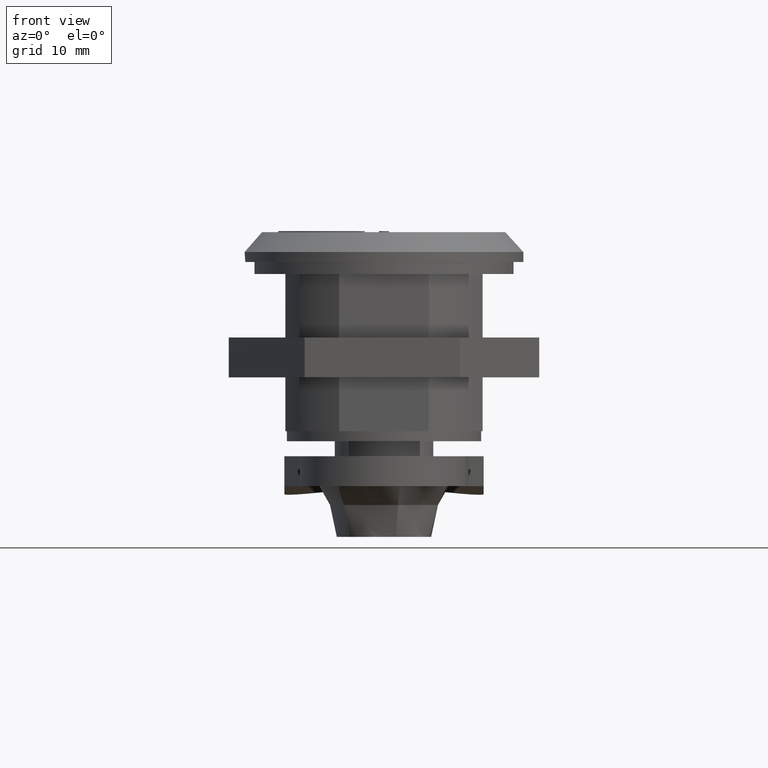
[diagram: clean part render]
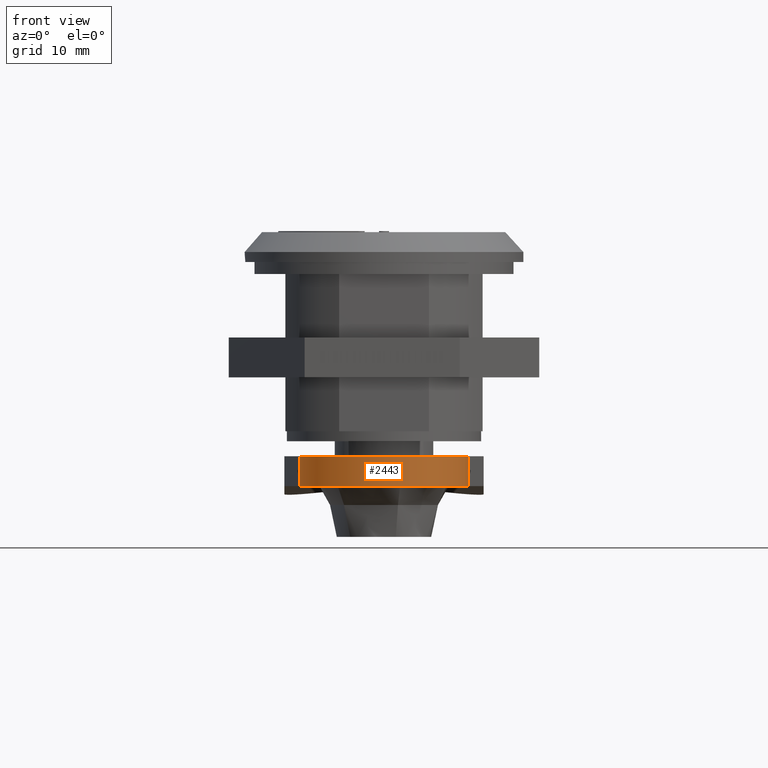
[diagram: same view with one face highlighted and labeled with its STEP entity id]
A machine part, front view. The second image highlights one B-rep face of the part: STEP entity #2443.
In plain terms, the highlighted cylindrical surface (partial cylindrical patch) has radius 8.5 mm, axis along (0, 0, 1).
Its self-contained STEP definition (entity closure, byte-faithful):
#240=LINE('',#3977,#457);
#247=LINE('',#3992,#464);
#457=VECTOR('',#3104,3.);
#464=VECTOR('',#3127,3.);
#596=CYLINDRICAL_SURFACE('',#2647,8.5);
#684=FACE_OUTER_BOUND('',#855,.T.);
#855=EDGE_LOOP('',(#1942,#1943,#1944,#1945));
#990=CIRCLE('',#2622,8.5);
#995=CIRCLE('',#2629,8.5);
#1143=VERTEX_POINT('',#3891);
#1144=VERTEX_POINT('',#3893);
#1159=VERTEX_POINT('',#3944);
#1160=VERTEX_POINT('',#3946);
#1405=EDGE_CURVE('',#1143,#1144,#990,.T.);
#1424=EDGE_CURVE('',#1160,#1159,#995,.T.);
#1440=EDGE_CURVE('',#1160,#1143,#240,.T.);
#1447=EDGE_CURVE('',#1159,#1144,#247,.T.);
#1942=ORIENTED_EDGE('',*,*,#1440,.F.);
#1943=ORIENTED_EDGE('',*,*,#1424,.T.);
#1944=ORIENTED_EDGE('',*,*,#1447,.T.);
#1945=ORIENTED_EDGE('',*,*,#1405,.F.);
#2443=ADVANCED_FACE('',(#684),#596,.T.);
#2622=AXIS2_PLACEMENT_3D('',#3894,#3045,#3046);
#2629=AXIS2_PLACEMENT_3D('',#3947,#3073,#3074);
#2647=AXIS2_PLACEMENT_3D('',#3994,#3130,#3131);
#3045=DIRECTION('center_axis',(0.,0.,1.));
#3046=DIRECTION('ref_axis',(1.,0.,0.));
#3073=DIRECTION('center_axis',(0.,0.,1.));
#3074=DIRECTION('ref_axis',(1.,0.,0.));
#3104=DIRECTION('',(0.,0.,1.));
#3127=DIRECTION('',(0.,0.,1.));
#3130=DIRECTION('center_axis',(0.,0.,1.));
#3131=DIRECTION('ref_axis',(1.,0.,0.));
#3891=CARTESIAN_POINT('',(-8.39597603295974,1.32573996468599,3.));
#3893=CARTESIAN_POINT('',(8.39597603295974,1.32573996468599,3.));
#3894=CARTESIAN_POINT('Origin',(0.,0.,3.));
#3944=CARTESIAN_POINT('',(8.39597603295974,1.32573996468599,0.));
#3946=CARTESIAN_POINT('',(-8.39597603295974,1.32573996468599,0.));
#3947=CARTESIAN_POINT('Origin',(0.,0.,0.));
#3977=CARTESIAN_POINT('',(-8.39597603295974,1.32573996468599,0.));
#3992=CARTESIAN_POINT('',(8.39597603295974,1.32573996468599,0.));
#3994=CARTESIAN_POINT('Origin',(0.,0.,0.));